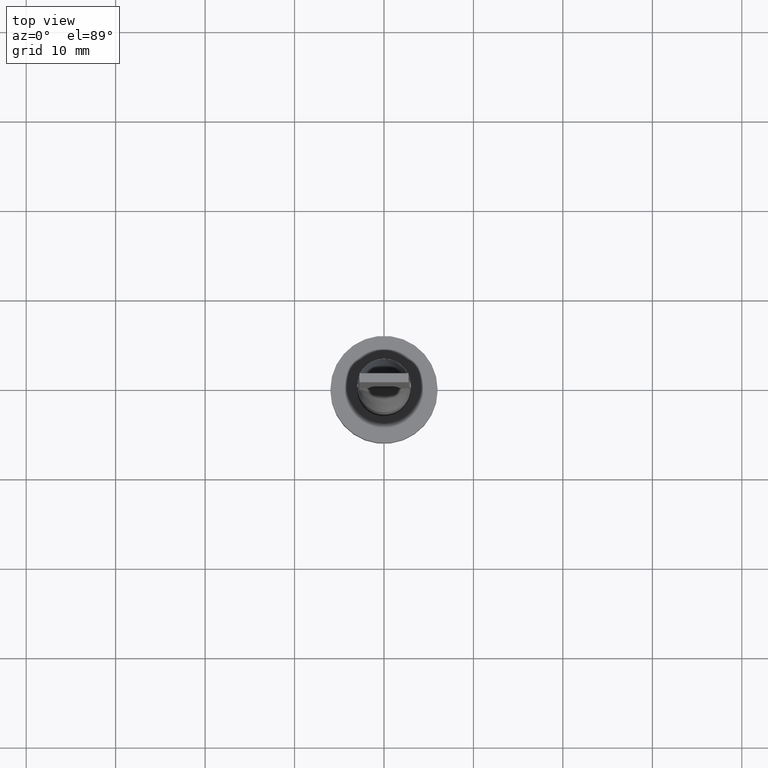
[diagram: clean part render]
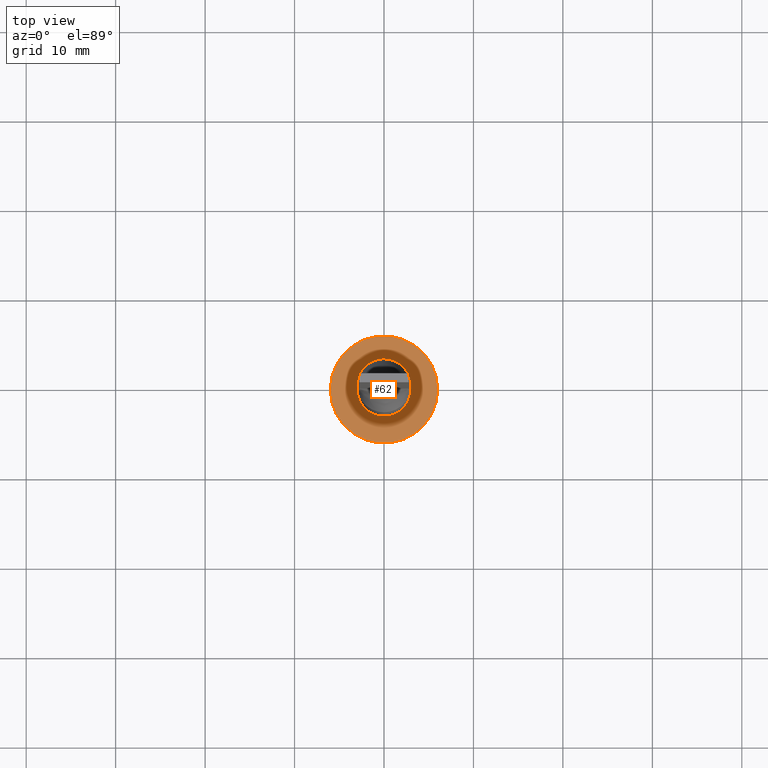
[diagram: same view with one face highlighted and labeled with its STEP entity id]
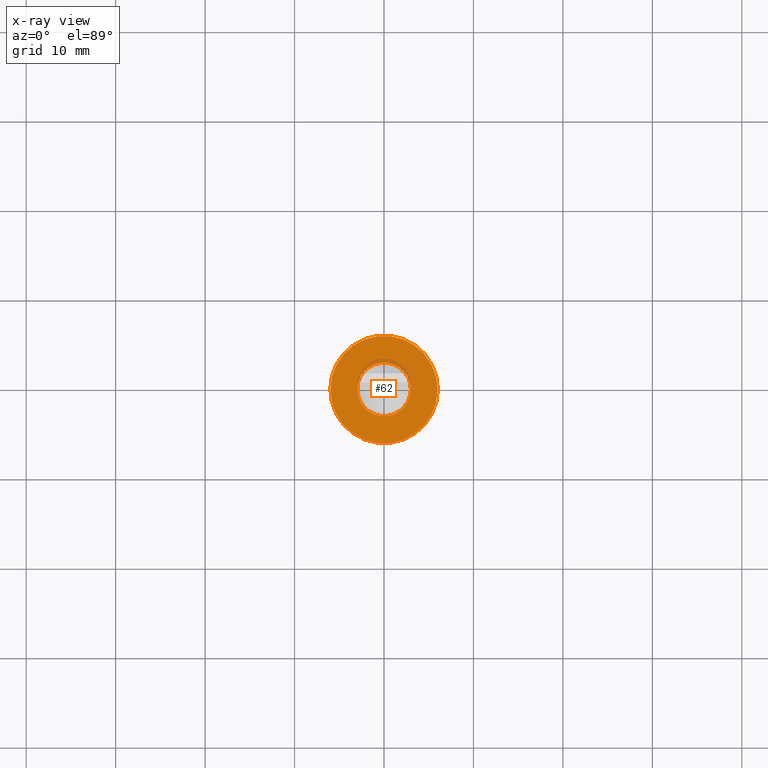
[diagram: x-ray of the same camera — body ghosted, the highlighted face saturated]
A machine part, top view. The second image highlights one B-rep face of the part: STEP entity #62.
The next image is the same camera in x-ray: the body ghosted, the highlighted face saturated — about 3% of this face is hidden behind the body in this view.
In plain terms, the highlighted planar face has unit normal (0, 0, 1).
Its self-contained STEP definition (entity closure, byte-faithful):
#2 = DIRECTION ( 'NONE',  ( 0.000000000000000000, 0.000000000000000000, 1.000000000000000000 ) ) ;
#23 = ORIENTED_EDGE ( 'NONE', *, *, #570, .T. ) ;
#25 = CARTESIAN_POINT ( 'NONE',  ( 0.000000000000000000, 0.000000000000000000, 5.000000000000000000 ) ) ;
#27 = VERTEX_POINT ( 'NONE', #405 ) ;
#28 = AXIS2_PLACEMENT_3D ( 'NONE', #185, #235, #273 ) ;
#37 = PLANE ( 'NONE',  #481 ) ;
#38 = CIRCLE ( 'NONE', #370, 3.000000000000000444 ) ;
#53 = DIRECTION ( 'NONE',  ( 1.000000000000000000, 0.000000000000000000, 0.000000000000000000 ) ) ;
#62 = ADVANCED_FACE ( 'NONE', ( #351, #530 ), #37, .T. ) ;
#91 = EDGE_CURVE ( 'NONE', #479, #355, #38, .T. ) ;
#118 = CARTESIAN_POINT ( 'NONE',  ( -3.000000000000000444, 0.000000000000000000, 5.000000000000000000 ) ) ;
#125 = EDGE_CURVE ( 'NONE', #355, #479, #203, .T. ) ;
#140 = CARTESIAN_POINT ( 'NONE',  ( 0.000000000000000000, 0.000000000000000000, 5.000000000000000000 ) ) ;
#141 = CIRCLE ( 'NONE', #342, 6.000000000000000888 ) ;
#145 = DIRECTION ( 'NONE',  ( 1.000000000000000000, 0.000000000000000000, -0.000000000000000000 ) ) ;
#185 = CARTESIAN_POINT ( 'NONE',  ( 0.000000000000000000, 0.000000000000000000, 5.000000000000000000 ) ) ;
#203 = CIRCLE ( 'NONE', #28, 3.000000000000000444 ) ;
#206 = EDGE_LOOP ( 'NONE', ( #260, #23 ) ) ;
#235 = DIRECTION ( 'NONE',  ( 0.000000000000000000, 0.000000000000000000, 1.000000000000000000 ) ) ;
#244 = AXIS2_PLACEMENT_3D ( 'NONE', #25, #245, #436 ) ;
#245 = DIRECTION ( 'NONE',  ( 0.000000000000000000, 0.000000000000000000, 1.000000000000000000 ) ) ;
#248 = ORIENTED_EDGE ( 'NONE', *, *, #91, .F. ) ;
#260 = ORIENTED_EDGE ( 'NONE', *, *, #285, .T. ) ;
#273 = DIRECTION ( 'NONE',  ( 1.000000000000000000, 0.000000000000000000, 0.000000000000000000 ) ) ;
#285 = EDGE_CURVE ( 'NONE', #300, #27, #141, .T. ) ;
#300 = VERTEX_POINT ( 'NONE', #389 ) ;
#329 = CARTESIAN_POINT ( 'NONE',  ( 0.000000000000000000, 0.000000000000000000, 5.000000000000000000 ) ) ;
#341 = EDGE_LOOP ( 'NONE', ( #393, #248 ) ) ;
#342 = AXIS2_PLACEMENT_3D ( 'NONE', #470, #563, #437 ) ;
#351 = FACE_BOUND ( 'NONE', #341, .T. ) ;
#355 = VERTEX_POINT ( 'NONE', #118 ) ;
#370 = AXIS2_PLACEMENT_3D ( 'NONE', #329, #2, #53 ) ;
#389 = CARTESIAN_POINT ( 'NONE',  ( -6.000000000000000888, 0.000000000000000000, 5.000000000000000000 ) ) ;
#393 = ORIENTED_EDGE ( 'NONE', *, *, #125, .F. ) ;
#405 = CARTESIAN_POINT ( 'NONE',  ( 6.000000000000000888, 7.347880794884120722E-16, 5.000000000000000000 ) ) ;
#420 = CIRCLE ( 'NONE', #244, 6.000000000000000888 ) ;
#436 = DIRECTION ( 'NONE',  ( 1.000000000000000000, 0.000000000000000000, 0.000000000000000000 ) ) ;
#437 = DIRECTION ( 'NONE',  ( 1.000000000000000000, 0.000000000000000000, 0.000000000000000000 ) ) ;
#463 = CARTESIAN_POINT ( 'NONE',  ( 3.000000000000000444, 3.673940397442060361E-16, 5.000000000000000000 ) ) ;
#470 = CARTESIAN_POINT ( 'NONE',  ( 0.000000000000000000, 0.000000000000000000, 5.000000000000000000 ) ) ;
#479 = VERTEX_POINT ( 'NONE', #463 ) ;
#481 = AXIS2_PLACEMENT_3D ( 'NONE', #140, #553, #145 ) ;
#530 = FACE_OUTER_BOUND ( 'NONE', #206, .T. ) ;
#553 = DIRECTION ( 'NONE',  ( 0.000000000000000000, 0.000000000000000000, 1.000000000000000000 ) ) ;
#563 = DIRECTION ( 'NONE',  ( 0.000000000000000000, 0.000000000000000000, 1.000000000000000000 ) ) ;
#570 = EDGE_CURVE ( 'NONE', #27, #300, #420, .T. ) ;